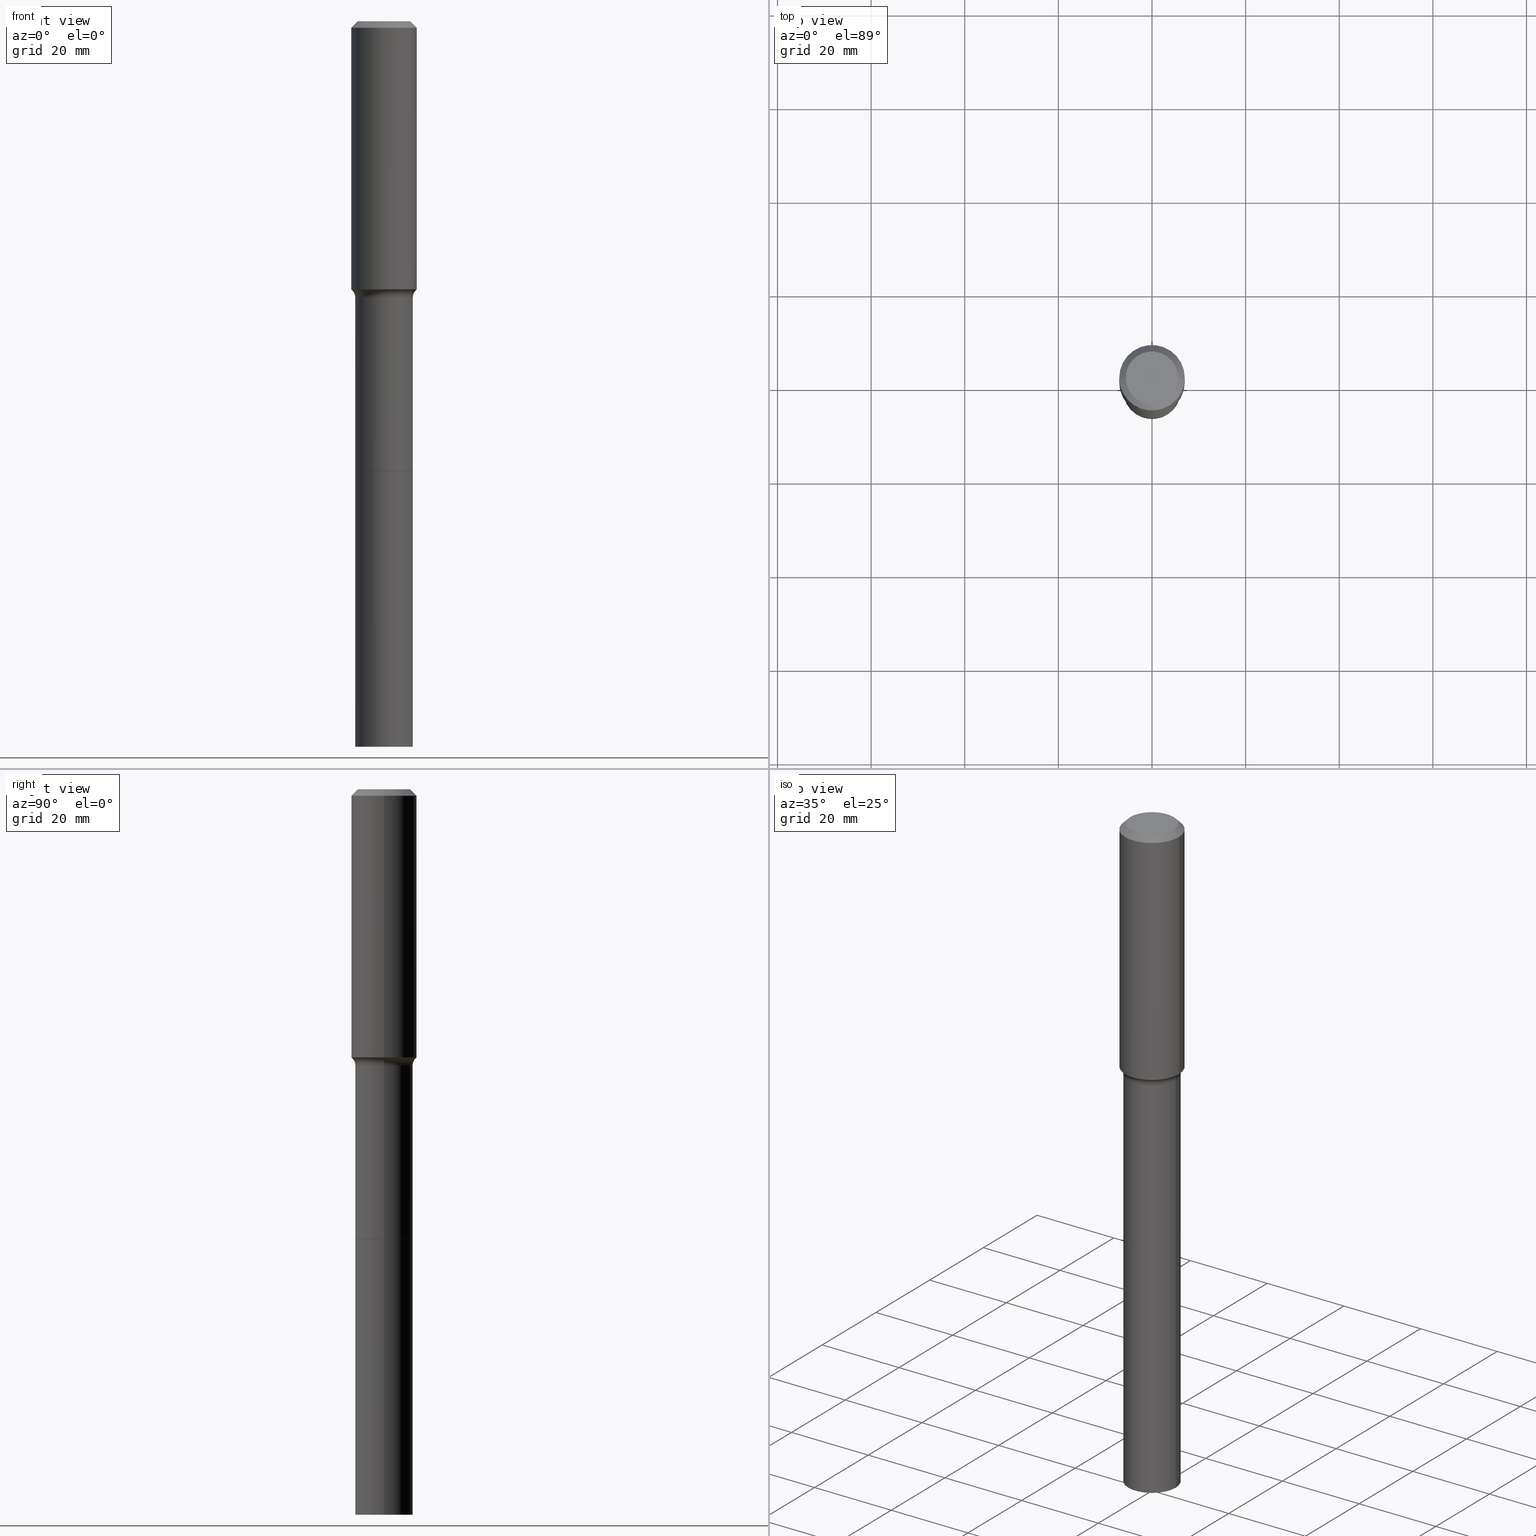
[diagram: canonical four-view strip — front | top / right | iso, engineering-drawing reading convention]
A machine part, canonical four-view strip (front | top / right | iso — engineering-drawing reading convention). The complete STEP part file that produces these views, byte-faithful:
ISO-10303-21;
HEADER;
FILE_DESCRIPTION (( 'STEP AP203' ),
    '1' );
FILE_NAME ('58910.STEP',
    '2025-04-01T15:26:49',
    ( '' ),
    ( '' ),
    'SwSTEP 2.0',
    'SolidWorks 2024',
    '' );
FILE_SCHEMA (( 'CONFIG_CONTROL_DESIGN' ));
ENDSEC;

DATA;
#1 = PERSON_AND_ORGANIZATION ( #31, #170 ) ;
#2 = PRODUCT_DEFINITION ( 'UNKNOWN', '', #135, #236 ) ;
#3 = CC_DESIGN_APPROVAL ( #81, ( #320 ) ) ;
#4 = AXIS2_PLACEMENT_3D ( 'NONE', #144, #382, #340 ) ;
#5 =( LENGTH_UNIT ( ) NAMED_UNIT ( * ) SI_UNIT ( $, .METRE. ) );
#6 = DIRECTION ( 'NONE',  ( 1.000000000000000000, 0.000000000000000000, 0.000000000000000000 ) ) ;
#7 = EDGE_CURVE ( 'NONE', #513, #426, #337, .T. ) ;
#8 = ORIENTED_EDGE ( 'NONE', *, *, #46, .T. ) ;
#9 = CLOSED_SHELL ( 'NONE', ( #311, #102, #222, #390 ) ) ;
#10 = CARTESIAN_POINT ( 'NONE',  ( -9.439721640706190018E-47, 1.347742071746724849E-32, 3.860086710912454339E-18 ) ) ;
#11 = CARTESIAN_POINT ( 'NONE',  ( -0.2756000000000000116, -2.074736939448809893E-15, -0.05512000000000037009 ) ) ;
#12 = DIRECTION ( 'NONE',  ( -0.6819983600624873743, 7.399397606724243978E-15, 0.7313537016191808959 ) ) ;
#13 = LOCAL_TIME ( 11, 26, 49.00000000000000000, #181 ) ;
#14 = FACE_OUTER_BOUND ( 'NONE', #47, .T. ) ;
#15 = CARTESIAN_POINT ( 'NONE',  ( 0.3221999999999999309, -1.035852683607983589E-14, -2.322400000000000464 ) ) ;
#16 = DIRECTION ( 'NONE',  ( -2.445468806185136877E-29, 3.491481338843145188E-15, 1.000000000000000000 ) ) ;
#17 = ORIENTED_EDGE ( 'NONE', *, *, #257, .T. ) ;
#18 = DIRECTION ( 'NONE',  ( -1.000000000000000000, 6.982962677686265922E-15, -4.876176775795935793E-29 ) ) ;
#19 = EDGE_LOOP ( 'NONE', ( #471, #187, #309, #392 ) ) ;
#20 = CARTESIAN_POINT ( 'NONE',  ( 0.2422000000000000264, -1.691273560535613991E-15, 1.181010015097775692E-29 ) ) ;
#21 = CIRCLE ( 'NONE', #394, 0.2422000000000000264 ) ;
#22 = DIRECTION ( 'NONE',  ( 1.000000000000000000, -6.982962677686267499E-15, 0.000000000000000000 ) ) ;
#23 = APPROVAL_DATE_TIME ( #505, #162 ) ;
#24 = EDGE_CURVE ( 'NONE', #208, #455, #175, .T. ) ;
#25 = CARTESIAN_POINT ( 'NONE',  ( -0.2756000000000000116, 1.732054062573299841E-15, -0.05512000000000037009 ) ) ;
#26 = DATE_TIME_ROLE ( 'classification_date' ) ;
#27 = FACE_OUTER_BOUND ( 'NONE', #317, .T. ) ;
#28 = CARTESIAN_POINT ( 'NONE',  ( -0.2756000000000001782, 1.958255779754837378E-15, -1.355658510874252848E-29 ) ) ;
#29 = DIRECTION ( 'NONE',  ( -2.445468806185136597E-29, 3.491481338843145583E-15, 1.000000000000000000 ) ) ;
#30 = LOCAL_TIME ( 11, 26, 49.00000000000000000, #276 ) ;
#31 = PERSON ( 'UNSPECIFIED', 'UNSPECIFIED', 'UNSPECIFIED', ('UNSPECIFIED'), ('UNSPECIFIED'), ('UNSPECIFIED') ) ;
#32 = AXIS2_PLACEMENT_3D ( 'NONE', #267, #58, #210 ) ;
#33 = ORIENTED_EDGE ( 'NONE', *, *, #373, .F. ) ;
#34 = APPROVAL_ROLE ( '' ) ;
#35 = CARTESIAN_POINT ( 'NONE',  ( 1.347942405969256414E-30, -1.924504513970354823E-16, -0.05512000000000037009 ) ) ;
#36 = ORIENTED_EDGE ( 'NONE', *, *, #468, .F. ) ;
#37 = ORIENTED_EDGE ( 'NONE', *, *, #480, .F. ) ;
#38 = DIRECTION ( 'NONE',  ( 0.6819983600624873743, -2.208861293262361418E-15, 0.7313537016191808959 ) ) ;
#39 = ORIENTED_EDGE ( 'NONE', *, *, #257, .F. ) ;
#40 = AXIS2_PLACEMENT_3D ( 'NONE', #378, #219, #176 ) ;
#41 = AXIS2_PLACEMENT_3D ( 'NONE', #100, #412, #22 ) ;
#42 = DATE_AND_TIME ( #306, #435 ) ;
#43 = DIRECTION ( 'NONE',  ( 1.000000000000000000, -6.982962677686265922E-15, 0.000000000000000000 ) ) ;
#44 = ADVANCED_FACE ( 'NONE', ( #356 ), #109, .T. ) ;
#45 = CIRCLE ( 'NONE', #376, 0.2417000000000000259 ) ;
#46 = EDGE_CURVE ( 'NONE', #133, #270, #506, .T. ) ;
#47 = EDGE_LOOP ( 'NONE', ( #164, #225, #36, #39 ) ) ;
#48 = ORIENTED_EDGE ( 'NONE', *, *, #353, .T. ) ;
#49 = DATE_AND_TIME ( #324, #13 ) ;
#50 = DIRECTION ( 'NONE',  ( -2.445468806185136597E-29, 3.491481338843145583E-15, 1.000000000000000000 ) ) ;
#51 = DIRECTION ( 'NONE',  ( -2.445468806185136597E-29, 3.491481338843145583E-15, 1.000000000000000000 ) ) ;
#52 = AXIS2_PLACEMENT_3D ( 'NONE', #247, #205, #357 ) ;
#53 = APPLICATION_PROTOCOL_DEFINITION ( 'international standard', 'config_control_design', 1994, #137 ) ;
#54 = DIRECTION ( 'NONE',  ( -2.445468806185136597E-29, 3.491481338843145583E-15, 1.000000000000000000 ) ) ;
#55 = ORIENTED_EDGE ( 'NONE', *, *, #89, .T. ) ;
#56 = CARTESIAN_POINT ( 'NONE',  ( 0.2422000000000000264, -1.488697813255939601E-14, -3.779399999999999427 ) ) ;
#57 = FACE_OUTER_BOUND ( 'NONE', #275, .T. ) ;
#58 = DIRECTION ( 'NONE',  ( -2.445468806185136597E-29, 3.491481338843145583E-15, 1.000000000000000000 ) ) ;
#59 = CARTESIAN_POINT ( 'NONE',  ( -0.2421999999999999154, -8.930353040330880505E-15, -2.322400000000000464 ) ) ;
#60 = EDGE_CURVE ( 'NONE', #513, #185, #214, .T. ) ;
#61 = AXIS2_PLACEMENT_3D ( 'NONE', #348, #463, #498 ) ;
#62 = CIRCLE ( 'NONE', #483, 0.2422000000000000264 ) ;
#63 = PERSON_AND_ORGANIZATION_ROLE ( 'design_supplier' ) ;
#64 = DIRECTION ( 'NONE',  ( -2.445468806185136597E-29, 3.491481338843145583E-15, 1.000000000000000000 ) ) ;
#65 = CARTESIAN_POINT ( 'NONE',  ( 1.492322884286417914E-28, -2.130641572215641241E-14, -6.102400000000000269 ) ) ;
#66 = DIRECTION ( 'NONE',  ( 1.000000000000000000, -6.982962677686265922E-15, 4.876176775795935793E-29 ) ) ;
#67 = APPLICATION_CONTEXT ( 'configuration controlled 3d designs of mechanical parts and assemblies' ) ;
#68 = ORIENTED_EDGE ( 'NONE', *, *, #315, .F. ) ;
#69 = CARTESIAN_POINT ( 'NONE',  ( 0.2422000000000000264, -2.299768928269202503E-14, -6.102400000000000269 ) ) ;
#70 = AXIS2_PLACEMENT_3D ( 'NONE', #195, #193, #6 ) ;
#71 = DIRECTION ( 'NONE',  ( -2.445468806185136597E-29, 3.491481338843145583E-15, 1.000000000000000000 ) ) ;
#72 = AXIS2_PLACEMENT_3D ( 'NONE', #212, #460, #114 ) ;
#73 = VERTEX_POINT ( 'NONE', #423 ) ;
#74 = CARTESIAN_POINT ( 'NONE',  ( 5.545932298252180810E-29, -7.918121497546934360E-15, -2.267840131195000275 ) ) ;
#75 = ORIENTED_EDGE ( 'NONE', *, *, #7, .T. ) ;
#76 = PRODUCT ( '58910', '58910', '', ( #396 ) ) ;
#77 = ORIENTED_EDGE ( 'NONE', *, *, #280, .F. ) ;
#78 = EDGE_CURVE ( 'NONE', #503, #399, #297, .T. ) ;
#79 = VERTEX_POINT ( 'NONE', #69 ) ;
#80 = VECTOR ( 'NONE', #12, 39.37007874015748143 ) ;
#81 = APPROVAL ( #419, 'UNSPECIFIED' ) ;
#82 =( CONVERSION_BASED_UNIT ( 'INCH', #232 ) LENGTH_UNIT ( ) NAMED_UNIT ( #454 ) );
#83 = DIRECTION ( 'NONE',  ( 1.000000000000000000, -6.982962677686265922E-15, 0.000000000000000000 ) ) ;
#84 = ADVANCED_FACE ( 'NONE', ( #253 ), #458, .T. ) ;
#85 =( NAMED_UNIT ( * ) PLANE_ANGLE_UNIT ( ) SI_UNIT ( $, .RADIAN. ) );
#86 = FACE_OUTER_BOUND ( 'NONE', #388, .T. ) ;
#87 = AXIS2_PLACEMENT_3D ( 'NONE', #105, #393, #66 ) ;
#88 = DIRECTION ( 'NONE',  ( 1.000000000000000000, -6.982962677686265922E-15, 0.000000000000000000 ) ) ;
#89 = EDGE_CURVE ( 'NONE', #270, #133, #482, .T. ) ;
#90 = DIRECTION ( 'NONE',  ( -2.438088387897960049E-29, 3.491481338843145188E-15, 1.000000000000000000 ) ) ;
#91 = DIRECTION ( 'NONE',  ( 1.000000000000000000, -6.982962677686266711E-15, 4.876176775795935232E-29 ) ) ;
#92 = EDGE_LOOP ( 'NONE', ( #206, #228, #249, #140 ) ) ;
#93 = CARTESIAN_POINT ( 'NONE',  ( -4.719860820353095009E-47, 6.738710358733624243E-33, 1.930043355456227170E-18 ) ) ;
#94 = DIRECTION ( 'NONE',  ( 1.000000000000000000, -6.982962677686275388E-15, 0.000000000000000000 ) ) ;
#95 = ADVANCED_FACE ( 'NONE', ( #112 ), #375, .T. ) ;
#96 = TOROIDAL_SURFACE ( 'NONE', #32, 0.3221999999999999309, 0.08000000000000007105 ) ;
#97 = ORIENTED_EDGE ( 'NONE', *, *, #151, .F. ) ;
#98 = CARTESIAN_POINT ( 'NONE',  ( 9.242404806096105288E-29, -1.319570457202378340E-14, -3.779399999999999427 ) ) ;
#99 = LINE ( 'NONE', #174, #220 ) ;
#100 = CARTESIAN_POINT ( 'NONE',  ( 9.242404806096105288E-29, -1.319570457202378340E-14, -3.779399999999999427 ) ) ;
#101 = EDGE_CURVE ( 'NONE', #344, #360, #301, .T. ) ;
#102 = ADVANCED_FACE ( 'NONE', ( #262 ), #420, .T. ) ;
#103 = DIRECTION ( 'NONE',  ( 2.445468806185136597E-29, -3.491481338843145583E-15, -1.000000000000000000 ) ) ;
#104 = DIRECTION ( 'NONE',  ( -2.445468806185136597E-29, 3.491481338843145583E-15, 1.000000000000000000 ) ) ;
#105 = CARTESIAN_POINT ( 'NONE',  ( 0.000000000000000000, 0.000000000000000000, 0.000000000000000000 ) ) ;
#106 = AXIS2_PLACEMENT_3D ( 'NONE', #438, #51, #43 ) ;
#107 = CARTESIAN_POINT ( 'NONE',  ( -0.2204800000000000093, 1.635828836874783961E-15, 3.860086710901350968E-18 ) ) ;
#108 = DIRECTION ( 'NONE',  ( -2.445468806185136597E-29, 3.491481338843145583E-15, 1.000000000000000000 ) ) ;
#109 = CONICAL_SURFACE ( 'NONE', #191, 0.2756000000000000116, 0.7853981633974449483 ) ;
#110 = EDGE_LOOP ( 'NONE', ( #166, #217 ) ) ;
#111 = PERSON_AND_ORGANIZATION ( #31, #170 ) ;
#112 = FACE_OUTER_BOUND ( 'NONE', #369, .T. ) ;
#113 = VERTEX_POINT ( 'NONE', #383 ) ;
#114 = DIRECTION ( 'NONE',  ( 1.000000000000000000, -6.982962677686267499E-15, 0.000000000000000000 ) ) ;
#115 = CIRCLE ( 'NONE', #202, 0.2756000000000000116 ) ;
#116 = ORIENTED_EDGE ( 'NONE', *, *, #444, .F. ) ;
#117 = CARTESIAN_POINT ( 'NONE',  ( 0.000000000000000000, 0.000000000000000000, 0.000000000000000000 ) ) ;
#118 = ORIENTED_EDGE ( 'NONE', *, *, #280, .T. ) ;
#119 = EDGE_CURVE ( 'NONE', #421, #431, #115, .T. ) ;
#120 = CARTESIAN_POINT ( 'NONE',  ( 9.242404806096105288E-29, -1.319570457202378340E-14, -3.779399999999999427 ) ) ;
#121 = CARTESIAN_POINT ( 'NONE',  ( 9.242404806096105288E-29, -1.319570457202378340E-14, -3.779399999999999427 ) ) ;
#122 = AXIS2_PLACEMENT_3D ( 'NONE', #445, #241, #475 ) ;
#123 = EDGE_LOOP ( 'NONE', ( #33, #295, #330, #288 ) ) ;
#124 = PERSON_AND_ORGANIZATION ( #31, #170 ) ;
#125 = TOROIDAL_SURFACE ( 'NONE', #386, 0.3221999999999999309, 0.08000000000000007105 ) ;
#126 = VECTOR ( 'NONE', #207, 39.37007874015748143 ) ;
#127 = CIRCLE ( 'NONE', #61, 0.2636917038704668093 ) ;
#128 = CYLINDRICAL_SURFACE ( 'NONE', #398, 0.2422000000000000264 ) ;
#129 = CIRCLE ( 'NONE', #200, 0.2422000000000000264 ) ;
#130 = DIRECTION ( 'NONE',  ( 1.000000000000000000, -6.982962677686266711E-15, 4.876132675269083677E-29 ) ) ;
#131 = DIRECTION ( 'NONE',  ( 2.438088387897960049E-29, -3.491481338843145188E-15, -1.000000000000000000 ) ) ;
#132 = DIRECTION ( 'NONE',  ( -2.445468806185136597E-29, 3.491481338843145583E-15, 1.000000000000000000 ) ) ;
#133 = VERTEX_POINT ( 'NONE', #178 ) ;
#134 = FACE_OUTER_BOUND ( 'NONE', #204, .T. ) ;
#135 = PRODUCT_DEFINITION_FORMATION_WITH_SPECIFIED_SOURCE ( 'ANY', '', #76, .NOT_KNOWN. ) ;
#136 = ADVANCED_FACE ( 'NONE', ( #342 ), #96, .F. ) ;
#137 = APPLICATION_CONTEXT ( 'configuration controlled 3d designs of mechanical parts and assemblies' ) ;
#138 = CARTESIAN_POINT ( 'NONE',  ( 1.347942405969256414E-30, -1.924504513970354823E-16, -0.05512000000000037009 ) ) ;
#139 = CARTESIAN_POINT ( 'NONE',  ( 5.679356755484362262E-29, -8.108616261329323209E-15, -2.322400000000000464 ) ) ;
#140 = ORIENTED_EDGE ( 'NONE', *, *, #372, .T. ) ;
#141 = DIRECTION ( 'NONE',  ( -2.445468806185136877E-29, 3.491481338843145188E-15, 1.000000000000000000 ) ) ;
#142 = PERSON_AND_ORGANIZATION_ROLE ( 'creator' ) ;
#143 = AXIS2_PLACEMENT_3D ( 'NONE', #74, #304, #223 ) ;
#144 = CARTESIAN_POINT ( 'NONE',  ( 5.679356755484362262E-29, -8.108616261329323209E-15, -2.322400000000000464 ) ) ;
#145 = PERSON_AND_ORGANIZATION ( #31, #170 ) ;
#146 = ORIENTED_EDGE ( 'NONE', *, *, #493, .F. ) ;
#147 = DIRECTION ( 'NONE',  ( 1.000000000000000000, -6.982962677686266711E-15, 4.876176775795935232E-29 ) ) ;
#148 = ORIENTED_EDGE ( 'NONE', *, *, #154, .F. ) ;
#149 = CIRCLE ( 'NONE', #192, 0.2421999999999999154 ) ;
#150 = FACE_OUTER_BOUND ( 'NONE', #464, .T. ) ;
#151 = EDGE_CURVE ( 'NONE', #185, #360, #465, .T. ) ;
#152 = AXIS2_PLACEMENT_3D ( 'NONE', #15, #327, #94 ) ;
#153 = ORIENTED_EDGE ( 'NONE', *, *, #60, .F. ) ;
#154 = EDGE_CURVE ( 'NONE', #113, #503, #45, .T. ) ;
#155 = EDGE_LOOP ( 'NONE', ( #55, #8 ) ) ;
#156 = AXIS2_PLACEMENT_3D ( 'NONE', #417, #108, #147 ) ;
#157 = DIRECTION ( 'NONE',  ( -2.445468806185136597E-29, 3.491481338843145583E-15, 1.000000000000000000 ) ) ;
#158 = CARTESIAN_POINT ( 'NONE',  ( 0.2417000000000000259, -1.488348665122055458E-14, -3.779399999999999427 ) ) ;
#159 = ORIENTED_EDGE ( 'NONE', *, *, #186, .T. ) ;
#160 = DIRECTION ( 'NONE',  ( -2.445468806185136597E-29, 3.491481338843145583E-15, 1.000000000000000000 ) ) ;
#161 = VECTOR ( 'NONE', #316, 39.37007874015748143 ) ;
#162 = APPROVAL ( #183, 'UNSPECIFIED' ) ;
#163 = CARTESIAN_POINT ( 'NONE',  ( 9.241182071693010244E-29, -1.319395883135436111E-14, -3.778899999999999260 ) ) ;
#164 = ORIENTED_EDGE ( 'NONE', *, *, #154, .T. ) ;
#165 = CARTESIAN_POINT ( 'NONE',  ( -0.2417000000000000259, -1.147567355251750908E-14, -3.779399999999999427 ) ) ;
#166 = ORIENTED_EDGE ( 'NONE', *, *, #466, .F. ) ;
#167 = LINE ( 'NONE', #158, #161 ) ;
#168 = EDGE_CURVE ( 'NONE', #73, #79, #21, .T. ) ;
#169 = DIRECTION ( 'NONE',  ( -1.000000000000000000, 6.982962677686265922E-15, -4.876176775795935793E-29 ) ) ;
#170 = ORGANIZATION ( 'UNSPECIFIED', 'UNSPECIFIED', '' ) ;
#171 = VECTOR ( 'NONE', #489, 39.37007874015748143 ) ;
#172 = DIRECTION ( 'NONE',  ( -2.445468806185136597E-29, 3.491481338843145583E-15, 1.000000000000000000 ) ) ;
#173 = CC_DESIGN_PERSON_AND_ORGANIZATION_ASSIGNMENT ( #345, #142, ( #135 ) ) ;
#174 = CARTESIAN_POINT ( 'NONE',  ( 0.2756000000000001782, -1.924504513970336137E-15, 1.343874319409360828E-29 ) ) ;
#175 = CIRCLE ( 'NONE', #472, 0.2422000000000000264 ) ;
#176 = DIRECTION ( 'NONE',  ( 1.000000000000000000, -6.982962677686270655E-15, 0.000000000000000000 ) ) ;
#177 = LINE ( 'NONE', #28, #474 ) ;
#178 = CARTESIAN_POINT ( 'NONE',  ( 0.2204800000000000093, -1.797903149065768707E-15, 3.860086710924123164E-18 ) ) ;
#179 = CIRCLE ( 'NONE', #278, 0.2756000000000002892 ) ;
#180 = ORIENTED_EDGE ( 'NONE', *, *, #433, .F. ) ;
#181 = COORDINATED_UNIVERSAL_TIME_OFFSET ( 5, 0, .BEHIND. ) ;
#182 = DIRECTION ( 'NONE',  ( 1.000000000000000000, -6.982962677686267499E-15, 0.000000000000000000 ) ) ;
#183 = APPROVAL_STATUS ( 'not_yet_approved' ) ;
#184 = FACE_OUTER_BOUND ( 'NONE', #349, .T. ) ;
#185 = VERTEX_POINT ( 'NONE', #282 ) ;
#186 = EDGE_CURVE ( 'NONE', #360, #344, #179, .T. ) ;
#187 = ORIENTED_EDGE ( 'NONE', *, *, #168, .T. ) ;
#188 = AXIS2_PLACEMENT_3D ( 'NONE', #380, #411, #302 ) ;
#189 = VECTOR ( 'NONE', #406, 39.37007874015748143 ) ;
#190 = ORIENTED_EDGE ( 'NONE', *, *, #60, .T. ) ;
#191 = AXIS2_PLACEMENT_3D ( 'NONE', #518, #476, #511 ) ;
#192 = AXIS2_PLACEMENT_3D ( 'NONE', #495, #64, #371 ) ;
#193 = DIRECTION ( 'NONE',  ( 0.000000000000000000, 0.000000000000000000, 1.000000000000000000 ) ) ;
#194 = EDGE_LOOP ( 'NONE', ( #507, #478, #118, #338 ) ) ;
#195 = CARTESIAN_POINT ( 'NONE',  ( 0.000000000000000000, 0.000000000000000000, 0.000000000000000000 ) ) ;
#196 = ADVANCED_FACE ( 'NONE', ( #318 ), #128, .T. ) ;
#197 = ORIENTED_EDGE ( 'NONE', *, *, #298, .T. ) ;
#198 = EDGE_CURVE ( 'NONE', #513, #344, #364, .T. ) ;
#199 = ORIENTED_EDGE ( 'NONE', *, *, #78, .F. ) ;
#200 = AXIS2_PLACEMENT_3D ( 'NONE', #370, #172, #407 ) ;
#201 = CARTESIAN_POINT ( 'NONE',  ( 0.2756000000000000116, -2.116954965367371053E-15, -0.05512000000000037009 ) ) ;
#202 = AXIS2_PLACEMENT_3D ( 'NONE', #35, #29, #182 ) ;
#203 = LINE ( 'NONE', #366, #285 ) ;
#204 = EDGE_LOOP ( 'NONE', ( #305, #442 ) ) ;
#205 = DIRECTION ( 'NONE',  ( -2.445468806185136597E-29, 3.491481338843145583E-15, 1.000000000000000000 ) ) ;
#206 = ORIENTED_EDGE ( 'NONE', *, *, #7, .F. ) ;
#207 = DIRECTION ( 'NONE',  ( -2.445468806185136877E-29, 3.491481338843145188E-15, 1.000000000000000000 ) ) ;
#208 = VERTEX_POINT ( 'NONE', #397 ) ;
#209 = CARTESIAN_POINT ( 'NONE',  ( -0.2756000000000002892, -5.915279207255420671E-15, -2.255070047035979908 ) ) ;
#210 = DIRECTION ( 'NONE',  ( 1.000000000000000000, -6.982962677686265922E-15, 4.883557194083112340E-29 ) ) ;
#211 = PLANE ( 'NONE',  #491 ) ;
#212 = CARTESIAN_POINT ( 'NONE',  ( 9.242404806096105288E-29, -1.319570457202378340E-14, -3.779399999999999427 ) ) ;
#213 = SECURITY_CLASSIFICATION_LEVEL ( 'unclassified' ) ;
#214 = CIRCLE ( 'NONE', #381, 0.2636917038704668093 ) ;
#215 = DIRECTION ( 'NONE',  ( 2.438088387897960049E-29, -3.491481338843145188E-15, -1.000000000000000000 ) ) ;
#216 = DIRECTION ( 'NONE',  ( -2.445468806185136597E-29, 3.491481338843145583E-15, 1.000000000000000000 ) ) ;
#217 = ORIENTED_EDGE ( 'NONE', *, *, #168, .F. ) ;
#218 = CALENDAR_DATE ( 2025, 1, 4 ) ;
#219 = DIRECTION ( 'NONE',  ( -2.445468806185136597E-29, 3.491481338843145583E-15, 1.000000000000000000 ) ) ;
#220 = VECTOR ( 'NONE', #141, 39.37007874015748143 ) ;
#221 = ORIENTED_EDGE ( 'NONE', *, *, #373, .T. ) ;
#222 = ADVANCED_FACE ( 'NONE', ( #403 ), #286, .T. ) ;
#223 = DIRECTION ( 'NONE',  ( 1.000000000000000000, -6.982962677686267499E-15, 0.000000000000000000 ) ) ;
#224 = EDGE_LOOP ( 'NONE', ( #148, #37 ) ) ;
#225 = ORIENTED_EDGE ( 'NONE', *, *, #78, .T. ) ;
#226 = CC_DESIGN_PERSON_AND_ORGANIZATION_ASSIGNMENT ( #362, #325, ( #76 ) ) ;
#227 = CONICAL_SURFACE ( 'NONE', #143, 0.2636917038704668093, 0.7504915783575464294 ) ;
#228 = ORIENTED_EDGE ( 'NONE', *, *, #298, .F. ) ;
#229 = DIRECTION ( 'NONE',  ( 1.000000000000000000, -6.982962677686267499E-15, 0.000000000000000000 ) ) ;
#230 = COORDINATED_UNIVERSAL_TIME_OFFSET ( 5, 0, .BEHIND. ) ;
#231 = ADVANCED_BREP_SHAPE_REPRESENTATION ( '58910', ( #430, #243, #70 ), #292 ) ;
#232 = LENGTH_MEASURE_WITH_UNIT ( LENGTH_MEASURE( 0.02539999999999999897 ), #5 );
#233 = DIRECTION ( 'NONE',  ( 1.000000000000000000, -6.982962677686270655E-15, 0.000000000000000000 ) ) ;
#234 = APPROVAL_STATUS ( 'not_yet_approved' ) ;
#235 = CIRCLE ( 'NONE', #284, 0.2422000000000000819 ) ;
#236 = DESIGN_CONTEXT ( 'detailed design', #137, 'design' ) ;
#237 = DIRECTION ( 'NONE',  ( -2.445468806185136597E-29, 3.491481338843145583E-15, 1.000000000000000000 ) ) ;
#238 =( NAMED_UNIT ( * ) SI_UNIT ( $, .STERADIAN. ) SOLID_ANGLE_UNIT ( ) );
#239 = EDGE_CURVE ( 'NONE', #185, #334, #314, .T. ) ;
#240 = DIRECTION ( 'NONE',  ( -2.445468806185136597E-29, 3.491481338843145583E-15, 1.000000000000000000 ) ) ;
#241 = DIRECTION ( 'NONE',  ( 7.105427357601001859E-15, 1.000000000000000000, -3.491481338843145583E-15 ) ) ;
#242 = FACE_OUTER_BOUND ( 'NONE', #434, .T. ) ;
#243 = MANIFOLD_SOLID_BREP ( 'Body-Move/Copy2[2]', #432 ) ;
#244 = LOCAL_TIME ( 11, 26, 49.00000000000000000, #422 ) ;
#245 = CARTESIAN_POINT ( 'NONE',  ( 9.242404806096105288E-29, -1.319570457202378340E-14, -3.779399999999999427 ) ) ;
#246 = CONICAL_SURFACE ( 'NONE', #350, 0.2636917038704668093, 0.7504915783575464294 ) ;
#247 = CARTESIAN_POINT ( 'NONE',  ( 1.347942405969256414E-30, -1.924504513970354823E-16, -0.05512000000000037009 ) ) ;
#248 = PERSON_AND_ORGANIZATION ( #31, #170 ) ;
#249 = ORIENTED_EDGE ( 'NONE', *, *, #239, .T. ) ;
#250 = PLANE ( 'NONE',  #469 ) ;
#251 = EDGE_CURVE ( 'NONE', #431, #421, #256, .T. ) ;
#252 = DIRECTION ( 'NONE',  ( 1.000000000000000000, -6.982962677686267499E-15, 0.000000000000000000 ) ) ;
#253 = FACE_OUTER_BOUND ( 'NONE', #310, .T. ) ;
#254 = CARTESIAN_POINT ( 'NONE',  ( -0.2422000000000000819, -8.930353040330880505E-15, -3.778899999999999260 ) ) ;
#255 = CC_DESIGN_SECURITY_CLASSIFICATION ( #320, ( #135 ) ) ;
#256 = CIRCLE ( 'NONE', #52, 0.2756000000000000116 ) ;
#257 = EDGE_CURVE ( 'NONE', #113, #352, #167, .T. ) ;
#258 = CIRCLE ( 'NONE', #441, 0.2417000000000000259 ) ;
#259 = ORIENTED_EDGE ( 'NONE', *, *, #24, .F. ) ;
#260 = CC_DESIGN_DATE_AND_TIME_ASSIGNMENT ( #395, #354, ( #2 ) ) ;
#261 = PERSON_AND_ORGANIZATION ( #31, #170 ) ;
#262 = FACE_OUTER_BOUND ( 'NONE', #110, .T. ) ;
#263 = ORIENTED_EDGE ( 'NONE', *, *, #46, .F. ) ;
#264 = DIRECTION ( 'NONE',  ( 1.000000000000000000, -6.982962677686267499E-15, 0.000000000000000000 ) ) ;
#265 = ADVANCED_FACE ( 'NONE', ( #86 ), #496, .T. ) ;
#266 = ORIENTED_EDGE ( 'NONE', *, *, #372, .F. ) ;
#267 = CARTESIAN_POINT ( 'NONE',  ( 5.679356755484362262E-29, -8.108616261329323209E-15, -2.322400000000000464 ) ) ;
#268 = VECTOR ( 'NONE', #343, 39.37007874015748143 ) ;
#269 = CARTESIAN_POINT ( 'NONE',  ( 5.545932298252180810E-29, -7.918121497546934360E-15, -2.267840131195000275 ) ) ;
#270 = VERTEX_POINT ( 'NONE', #107 ) ;
#271 = ADVANCED_FACE ( 'NONE', ( #27 ), #246, .T. ) ;
#272 = ORIENTED_EDGE ( 'NONE', *, *, #186, .F. ) ;
#273 = APPROVAL_ROLE ( '' ) ;
#274 = PRODUCT_DEFINITION_SHAPE ( 'NONE', 'NONE',  #2 ) ;
#275 = EDGE_LOOP ( 'NONE', ( #153, #75, #48, #389 ) ) ;
#276 = COORDINATED_UNIVERSAL_TIME_OFFSET ( 5, 0, .BEHIND. ) ;
#277 = APPROVAL_PERSON_ORGANIZATION ( #261, #81, #34 ) ;
#278 = AXIS2_PLACEMENT_3D ( 'NONE', #291, #237, #233 ) ;
#279 = AXIS2_PLACEMENT_3D ( 'NONE', #10, #319, #130 ) ;
#280 = EDGE_CURVE ( 'NONE', #270, #421, #427, .T. ) ;
#281 = ADVANCED_FACE ( 'NONE', ( #184 ), #227, .T. ) ;
#282 = CARTESIAN_POINT ( 'NONE',  ( 0.2636917038704666427, -9.759470824089901283E-15, -2.267840131195000275 ) ) ;
#283 = ORIENTED_EDGE ( 'NONE', *, *, #466, .T. ) ;
#284 = AXIS2_PLACEMENT_3D ( 'NONE', #492, #54, #456 ) ;
#285 = VECTOR ( 'NONE', #16, 39.37007874015748143 ) ;
#286 = CYLINDRICAL_SURFACE ( 'NONE', #106, 0.2422000000000000264 ) ;
#287 = CARTESIAN_POINT ( 'NONE',  ( 5.545932298252180810E-29, -7.918121497546934360E-15, -2.267840131195000275 ) ) ;
#288 = ORIENTED_EDGE ( 'NONE', *, *, #119, .F. ) ;
#289 = PLANE ( 'NONE',  #294 ) ;
#290 = DIRECTION ( 'NONE',  ( -2.445468806185136877E-29, 3.491481338843145188E-15, 1.000000000000000000 ) ) ;
#291 = CARTESIAN_POINT ( 'NONE',  ( 5.514703455788938284E-29, -7.873534987010259627E-15, -2.255070047035979908 ) ) ;
#292 =( GEOMETRIC_REPRESENTATION_CONTEXT ( 3 ) GLOBAL_UNCERTAINTY_ASSIGNED_CONTEXT ( ( #457 ) ) GLOBAL_UNIT_ASSIGNED_CONTEXT ( ( #82, #85, #238 ) ) REPRESENTATION_CONTEXT ( 'NONE', 'WORKASPACE' ) );
#293 = LINE ( 'NONE', #487, #189 ) ;
#294 = AXIS2_PLACEMENT_3D ( 'NONE', #245, #449, #18 ) ;
#295 = ORIENTED_EDGE ( 'NONE', *, *, #101, .T. ) ;
#296 = DIRECTION ( 'NONE',  ( 1.000000000000000000, -6.982962677686265922E-15, 4.876176775795935793E-29 ) ) ;
#297 = LINE ( 'NONE', #461, #462 ) ;
#298 = EDGE_CURVE ( 'NONE', #185, #513, #127, .T. ) ;
#299 = ADVANCED_FACE ( 'NONE', ( #512 ), #425, .T. ) ;
#300 = LINE ( 'NONE', #20, #502 ) ;
#301 = CIRCLE ( 'NONE', #40, 0.2756000000000002892 ) ;
#302 = DIRECTION ( 'NONE',  ( 1.000000000000000000, -6.982962677686266711E-15, 4.876132675269083677E-29 ) ) ;
#303 = PERSON_AND_ORGANIZATION_ROLE ( 'classification_officer' ) ;
#304 = DIRECTION ( 'NONE',  ( -2.445468806185136597E-29, 3.491481338843145583E-15, 1.000000000000000000 ) ) ;
#305 = ORIENTED_EDGE ( 'NONE', *, *, #24, .T. ) ;
#306 = CALENDAR_DATE ( 2025, 1, 4 ) ;
#307 = ORIENTED_EDGE ( 'NONE', *, *, #151, .T. ) ;
#308 = CARTESIAN_POINT ( 'NONE',  ( 9.242404806096105288E-29, -1.319570457202378340E-14, -3.779399999999999427 ) ) ;
#309 = ORIENTED_EDGE ( 'NONE', *, *, #433, .T. ) ;
#310 = EDGE_LOOP ( 'NONE', ( #146, #517, #470, #358 ) ) ;
#311 = ADVANCED_FACE ( 'NONE', ( #150 ), #509, .T. ) ;
#312 = DIRECTION ( 'NONE',  ( -2.445468806185136597E-29, 3.491481338843145583E-15, 1.000000000000000000 ) ) ;
#313 = PERSON_AND_ORGANIZATION_ROLE ( 'creator' ) ;
#314 = CIRCLE ( 'NONE', #152, 0.08000000000000009881 ) ;
#315 = EDGE_CURVE ( 'NONE', #360, #431, #99, .T. ) ;
#316 = DIRECTION ( 'NONE',  ( 0.7071067811864750752, -2.468850131081498176E-15, 0.7071067811866199593 ) ) ;
#317 = EDGE_LOOP ( 'NONE', ( #467, #190, #307, #339 ) ) ;
#318 = FACE_OUTER_BOUND ( 'NONE', #385, .T. ) ;
#319 = DIRECTION ( 'NONE',  ( -2.445468806185136597E-29, 3.491481338843145583E-15, 1.000000000000000000 ) ) ;
#320 = SECURITY_CLASSIFICATION ( '', '', #213 ) ;
#321 = ORIENTED_EDGE ( 'NONE', *, *, #493, .T. ) ;
#322 = VECTOR ( 'NONE', #38, 39.37007874015748143 ) ;
#323 = CARTESIAN_POINT ( 'NONE',  ( -0.2422000000000000264, -1.553012564107913704E-14, -3.779399999999999427 ) ) ;
#324 = CALENDAR_DATE ( 2025, 1, 4 ) ;
#325 = PERSON_AND_ORGANIZATION_ROLE ( 'design_owner' ) ;
#326 = DIRECTION ( 'NONE',  ( 1.000000000000000000, -6.982962677686264344E-15, 0.000000000000000000 ) ) ;
#327 = DIRECTION ( 'NONE',  ( -6.982962677686266711E-15, -1.000000000000000000, 3.491481338843145583E-15 ) ) ;
#328 = LINE ( 'NONE', #335, #126 ) ;
#329 = CC_DESIGN_PERSON_AND_ORGANIZATION_ASSIGNMENT ( #124, #313, ( #2 ) ) ;
#330 = ORIENTED_EDGE ( 'NONE', *, *, #315, .T. ) ;
#331 = LINE ( 'NONE', #56, #171 ) ;
#332 = CONICAL_SURFACE ( 'NONE', #514, 0.2756000000000000116, 0.7853981633974449483 ) ;
#333 = CARTESIAN_POINT ( 'NONE',  ( 0.2636917038704668093, -9.759470824089902860E-15, -2.267840131195000275 ) ) ;
#334 = VERTEX_POINT ( 'NONE', #408 ) ;
#335 = CARTESIAN_POINT ( 'NONE',  ( -0.2422000000000000264, -1.147477006601282096E-14, -3.779399999999999427 ) ) ;
#336 = ADVANCED_FACE ( 'NONE', ( #57 ), #125, .F. ) ;
#337 = CIRCLE ( 'NONE', #122, 0.08000000000000009881 ) ;
#338 = ORIENTED_EDGE ( 'NONE', *, *, #119, .T. ) ;
#339 = ORIENTED_EDGE ( 'NONE', *, *, #101, .F. ) ;
#340 = DIRECTION ( 'NONE',  ( 1.000000000000000000, -6.982962677686265133E-15, 0.000000000000000000 ) ) ;
#341 = CALENDAR_DATE ( 2025, 1, 4 ) ;
#342 = FACE_OUTER_BOUND ( 'NONE', #92, .T. ) ;
#343 = DIRECTION ( 'NONE',  ( -0.7071067811865451302, 2.468850131082231817E-15, -0.7071067811865499042 ) ) ;
#344 = VERTEX_POINT ( 'NONE', #209 ) ;
#345 = PERSON_AND_ORGANIZATION ( #31, #170 ) ;
#346 = DIRECTION ( 'NONE',  ( 1.000000000000000000, -6.982962677686265922E-15, 4.876176775795935793E-29 ) ) ;
#347 = ORIENTED_EDGE ( 'NONE', *, *, #468, .T. ) ;
#348 = CARTESIAN_POINT ( 'NONE',  ( 5.545932298252180810E-29, -7.918121497546934360E-15, -2.267840131195000275 ) ) ;
#349 = EDGE_LOOP ( 'NONE', ( #197, #367, #272, #97 ) ) ;
#350 = AXIS2_PLACEMENT_3D ( 'NONE', #269, #216, #384 ) ;
#351 = AXIS2_PLACEMENT_3D ( 'NONE', #163, #160, #326 ) ;
#352 = VERTEX_POINT ( 'NONE', #418 ) ;
#353 = EDGE_CURVE ( 'NONE', #426, #334, #149, .T. ) ;
#354 = DATE_TIME_ROLE ( 'creation_date' ) ;
#355 = EDGE_CURVE ( 'NONE', #352, #334, #300, .T. ) ;
#356 = FACE_OUTER_BOUND ( 'NONE', #194, .T. ) ;
#357 = DIRECTION ( 'NONE',  ( 1.000000000000000000, -6.982962677686267499E-15, 0.000000000000000000 ) ) ;
#358 = ORIENTED_EDGE ( 'NONE', *, *, #353, .F. ) ;
#359 = APPROVAL ( #234, 'UNSPECIFIED' ) ;
#360 = VERTEX_POINT ( 'NONE', #504 ) ;
#361 = DIRECTION ( 'NONE',  ( 1.000000000000000000, -6.982962677686265922E-15, 0.000000000000000000 ) ) ;
#362 = PERSON_AND_ORGANIZATION ( #31, #170 ) ;
#363 = DIRECTION ( 'NONE',  ( 1.000000000000000000, -6.982962677686265922E-15, 0.000000000000000000 ) ) ;
#364 = LINE ( 'NONE', #450, #80 ) ;
#365 = ORIENTED_EDGE ( 'NONE', *, *, #355, .F. ) ;
#366 = CARTESIAN_POINT ( 'NONE',  ( -0.2422000000000000264, 1.720934506010962838E-15, -1.191366078859738205E-29 ) ) ;
#367 = ORIENTED_EDGE ( 'NONE', *, *, #198, .T. ) ;
#368 = APPROVAL_DATE_TIME ( #49, #81 ) ;
#369 = EDGE_LOOP ( 'NONE', ( #199, #510, #17, #116 ) ) ;
#370 = CARTESIAN_POINT ( 'NONE',  ( 9.242404806096105288E-29, -1.319570457202378340E-14, -3.779399999999999427 ) ) ;
#371 = DIRECTION ( 'NONE',  ( 1.000000000000000000, -6.982962677686265133E-15, 0.000000000000000000 ) ) ;
#372 = EDGE_CURVE ( 'NONE', #334, #426, #440, .T. ) ;
#373 = EDGE_CURVE ( 'NONE', #344, #421, #177, .T. ) ;
#374 = CARTESIAN_POINT ( 'NONE',  ( 9.242404806096105288E-29, -1.319570457202378340E-14, -3.779399999999999427 ) ) ;
#375 = CONICAL_SURFACE ( 'NONE', #72, 0.2417000000000000259, 0.7853981633973459164 ) ;
#376 = AXIS2_PLACEMENT_3D ( 'NONE', #120, #312, #229 ) ;
#377 = APPROVAL_ROLE ( '' ) ;
#378 = CARTESIAN_POINT ( 'NONE',  ( 5.514703455788938284E-29, -7.873534987010259627E-15, -2.255070047035979908 ) ) ;
#379 = DATE_AND_TIME ( #218, #244 ) ;
#380 = CARTESIAN_POINT ( 'NONE',  ( -9.439721640706190018E-47, 1.347742071746724849E-32, 3.860086710912454339E-18 ) ) ;
#381 = AXIS2_PLACEMENT_3D ( 'NONE', #287, #240, #264 ) ;
#382 = DIRECTION ( 'NONE',  ( -2.445468806185136597E-29, 3.491481338843145583E-15, 1.000000000000000000 ) ) ;
#383 = CARTESIAN_POINT ( 'NONE',  ( 0.2417000000000000259, -1.488348665122055458E-14, -3.779399999999999427 ) ) ;
#384 = DIRECTION ( 'NONE',  ( 1.000000000000000000, -6.982962677686267499E-15, 0.000000000000000000 ) ) ;
#385 = EDGE_LOOP ( 'NONE', ( #347, #321, #266, #365 ) ) ;
#386 = AXIS2_PLACEMENT_3D ( 'NONE', #139, #104, #410 ) ;
#387 = DIRECTION ( 'NONE',  ( -1.000000000000000000, 6.982962677686265922E-15, -4.876176775795935793E-29 ) ) ;
#388 = EDGE_LOOP ( 'NONE', ( #159, #221, #500, #68 ) ) ;
#389 = ORIENTED_EDGE ( 'NONE', *, *, #239, .F. ) ;
#390 = ADVANCED_FACE ( 'NONE', ( #134 ), #289, .F. ) ;
#391 = ADVANCED_FACE ( 'NONE', ( #242 ), #332, .T. ) ;
#392 = ORIENTED_EDGE ( 'NONE', *, *, #499, .F. ) ;
#393 = DIRECTION ( 'NONE',  ( -2.445468806185136597E-29, 3.491481338843145583E-15, 1.000000000000000000 ) ) ;
#394 = AXIS2_PLACEMENT_3D ( 'NONE', #477, #132, #361 ) ;
#395 = DATE_AND_TIME ( #437, #30 ) ;
#396 = MECHANICAL_CONTEXT ( 'NONE', #67, 'mechanical' ) ;
#397 = CARTESIAN_POINT ( 'NONE',  ( 0.2422000000000000264, -1.488697813255939601E-14, -3.779399999999999427 ) ) ;
#398 = AXIS2_PLACEMENT_3D ( 'NONE', #485, #448, #91 ) ;
#399 = VERTEX_POINT ( 'NONE', #254 ) ;
#400 = CC_DESIGN_DATE_AND_TIME_ASSIGNMENT ( #379, #26, ( #320 ) ) ;
#401 = APPLICATION_PROTOCOL_DEFINITION ( 'international standard', 'config_control_design', 1994, #67 ) ;
#402 = FACE_OUTER_BOUND ( 'NONE', #224, .T. ) ;
#403 = FACE_OUTER_BOUND ( 'NONE', #19, .T. ) ;
#404 = CC_DESIGN_APPROVAL ( #359, ( #2 ) ) ;
#405 = AXIS2_PLACEMENT_3D ( 'NONE', #117, #71, #346 ) ;
#406 = DIRECTION ( 'NONE',  ( 0.7071067811865451302, -7.319954787623248157E-15, -0.7071067811865499042 ) ) ;
#407 = DIRECTION ( 'NONE',  ( 1.000000000000000000, -6.982962677686265922E-15, 0.000000000000000000 ) ) ;
#408 = CARTESIAN_POINT ( 'NONE',  ( 0.2421999999999999154, -9.799889821864935820E-15, -2.322400000000000464 ) ) ;
#409 = DIRECTION ( 'NONE',  ( -1.000000000000000000, 6.982962677686267499E-15, 0.000000000000000000 ) ) ;
#410 = DIRECTION ( 'NONE',  ( 1.000000000000000000, -6.982962677686265922E-15, 4.883557194083112340E-29 ) ) ;
#411 = DIRECTION ( 'NONE',  ( -2.445468806185136597E-29, 3.491481338843145583E-15, 1.000000000000000000 ) ) ;
#412 = DIRECTION ( 'NONE',  ( -2.445468806185136597E-29, 3.491481338843145583E-15, 1.000000000000000000 ) ) ;
#413 = AXIS2_PLACEMENT_3D ( 'NONE', #65, #215, #387 ) ;
#414 = CC_DESIGN_PERSON_AND_ORGANIZATION_ASSIGNMENT ( #145, #303, ( #320 ) ) ;
#415 = CONICAL_SURFACE ( 'NONE', #41, 0.2417000000000000259, 0.7853981633973459164 ) ;
#416 = COORDINATED_UNIVERSAL_TIME_OFFSET ( 5, 0, .BEHIND. ) ;
#417 = CARTESIAN_POINT ( 'NONE',  ( 0.000000000000000000, 0.000000000000000000, 0.000000000000000000 ) ) ;
#418 = CARTESIAN_POINT ( 'NONE',  ( 0.2422000000000000819, -1.488523239188997372E-14, -3.778899999999999260 ) ) ;
#419 = APPROVAL_STATUS ( 'not_yet_approved' ) ;
#420 = PLANE ( 'NONE',  #413 ) ;
#421 = VERTEX_POINT ( 'NONE', #11 ) ;
#422 = COORDINATED_UNIVERSAL_TIME_OFFSET ( 5, 0, .BEHIND. ) ;
#423 = CARTESIAN_POINT ( 'NONE',  ( -0.2422000000000000264, -1.553012564107913704E-14, -6.102400000000000269 ) ) ;
#424 = PRODUCT_RELATED_PRODUCT_CATEGORY ( 'detail', '', ( #76 ) ) ;
#425 = CYLINDRICAL_SURFACE ( 'NONE', #405, 0.2756000000000001782 ) ;
#426 = VERTEX_POINT ( 'NONE', #59 ) ;
#427 = LINE ( 'NONE', #25, #268 ) ;
#428 = ORIENTED_EDGE ( 'NONE', *, *, #479, .T. ) ;
#429 = ADVANCED_FACE ( 'NONE', ( #452 ), #211, .F. ) ;
#430 = MANIFOLD_SOLID_BREP ( 'Body-Move/Copy2[1]', #9 ) ;
#431 = VERTEX_POINT ( 'NONE', #201 ) ;
#432 = CLOSED_SHELL ( 'NONE', ( #447, #391, #265, #281, #336, #196, #84, #136, #271, #299, #44, #429, #443, #95 ) ) ;
#433 = EDGE_CURVE ( 'NONE', #79, #208, #331, .T. ) ;
#434 = EDGE_LOOP ( 'NONE', ( #263, #428, #490, #77 ) ) ;
#435 = LOCAL_TIME ( 11, 26, 49.00000000000000000, #230 ) ;
#436 = AXIS2_PLACEMENT_3D ( 'NONE', #308, #453, #88 ) ;
#437 = CALENDAR_DATE ( 2025, 1, 4 ) ;
#438 = CARTESIAN_POINT ( 'NONE',  ( 9.242404806096105288E-29, -1.319570457202378340E-14, -3.779399999999999427 ) ) ;
#439 = CC_DESIGN_APPROVAL ( #162, ( #135 ) ) ;
#440 = CIRCLE ( 'NONE', #4, 0.2421999999999999154 ) ;
#441 = AXIS2_PLACEMENT_3D ( 'NONE', #98, #484, #252 ) ;
#442 = ORIENTED_EDGE ( 'NONE', *, *, #499, .T. ) ;
#443 = ADVANCED_FACE ( 'NONE', ( #402 ), #250, .F. ) ;
#444 = EDGE_CURVE ( 'NONE', #399, #352, #235, .T. ) ;
#445 = CARTESIAN_POINT ( 'NONE',  ( -0.3221999999999999309, -5.819247566710280112E-15, -2.322400000000000464 ) ) ;
#446 = CARTESIAN_POINT ( 'NONE',  ( 1.492322884286417914E-28, -2.130641572215641241E-14, -6.102400000000000269 ) ) ;
#447 = ADVANCED_FACE ( 'NONE', ( #14 ), #415, .T. ) ;
#448 = DIRECTION ( 'NONE',  ( -2.445468806185136597E-29, 3.491481338843145583E-15, 1.000000000000000000 ) ) ;
#449 = DIRECTION ( 'NONE',  ( 2.438088387897960049E-29, -3.491481338843145188E-15, -1.000000000000000000 ) ) ;
#450 = CARTESIAN_POINT ( 'NONE',  ( -0.2636917038704668093, -6.044479250893296716E-15, -2.267840131195000275 ) ) ;
#451 = APPROVAL_PERSON_ORGANIZATION ( #1, #162, #377 ) ;
#452 = FACE_OUTER_BOUND ( 'NONE', #155, .T. ) ;
#453 = DIRECTION ( 'NONE',  ( -2.445468806185136597E-29, 3.491481338843145583E-15, 1.000000000000000000 ) ) ;
#454 = DIMENSIONAL_EXPONENTS ( 1.000000000000000000, 0.000000000000000000, 0.000000000000000000, 0.000000000000000000, 0.000000000000000000, 0.000000000000000000, 0.000000000000000000 ) ;
#455 = VERTEX_POINT ( 'NONE', #323 ) ;
#456 = DIRECTION ( 'NONE',  ( 1.000000000000000000, -6.982962677686264344E-15, 0.000000000000000000 ) ) ;
#457 = UNCERTAINTY_MEASURE_WITH_UNIT (LENGTH_MEASURE( 1.000000000000000082E-05 ), #82, 'distance_accuracy_value', 'NONE');
#458 = CYLINDRICAL_SURFACE ( 'NONE', #156, 0.2422000000000000264 ) ;
#459 = DIRECTION ( 'NONE',  ( -2.445468806185136877E-29, 3.491481338843145188E-15, 1.000000000000000000 ) ) ;
#460 = DIRECTION ( 'NONE',  ( -2.445468806185136597E-29, 3.491481338843145583E-15, 1.000000000000000000 ) ) ;
#461 = CARTESIAN_POINT ( 'NONE',  ( -0.2417000000000000259, -1.147832277969162107E-14, -3.779399999999999427 ) ) ;
#462 = VECTOR ( 'NONE', #497, 39.37007874015748143 ) ;
#463 = DIRECTION ( 'NONE',  ( -2.445468806185136597E-29, 3.491481338843145583E-15, 1.000000000000000000 ) ) ;
#464 = EDGE_LOOP ( 'NONE', ( #283, #488, #259, #180 ) ) ;
#465 = LINE ( 'NONE', #333, #322 ) ;
#466 = EDGE_CURVE ( 'NONE', #79, #73, #62, .T. ) ;
#467 = ORIENTED_EDGE ( 'NONE', *, *, #198, .F. ) ;
#468 = EDGE_CURVE ( 'NONE', #352, #399, #515, .T. ) ;
#469 = AXIS2_PLACEMENT_3D ( 'NONE', #374, #90, #296 ) ;
#470 = ORIENTED_EDGE ( 'NONE', *, *, #355, .T. ) ;
#471 = ORIENTED_EDGE ( 'NONE', *, *, #508, .F. ) ;
#472 = AXIS2_PLACEMENT_3D ( 'NONE', #121, #157, #83 ) ;
#473 = APPROVAL_DATE_TIME ( #42, #359 ) ;
#474 = VECTOR ( 'NONE', #290, 39.37007874015748143 ) ;
#475 = DIRECTION ( 'NONE',  ( -1.000000000000000000, 7.105427357601001859E-15, 0.000000000000000000 ) ) ;
#476 = DIRECTION ( 'NONE',  ( 2.445468806185136597E-29, -3.491481338843145583E-15, -1.000000000000000000 ) ) ;
#477 = CARTESIAN_POINT ( 'NONE',  ( 1.492322884286417914E-28, -2.130641572215641241E-14, -6.102400000000000269 ) ) ;
#478 = ORIENTED_EDGE ( 'NONE', *, *, #89, .F. ) ;
#479 = EDGE_CURVE ( 'NONE', #133, #431, #293, .T. ) ;
#480 = EDGE_CURVE ( 'NONE', #503, #113, #258, .T. ) ;
#481 = APPROVAL_PERSON_ORGANIZATION ( #248, #359, #273 ) ;
#482 = CIRCLE ( 'NONE', #188, 0.2204800000000000093 ) ;
#483 = AXIS2_PLACEMENT_3D ( 'NONE', #446, #50, #363 ) ;
#484 = DIRECTION ( 'NONE',  ( -2.445468806185136597E-29, 3.491481338843145583E-15, 1.000000000000000000 ) ) ;
#485 = CARTESIAN_POINT ( 'NONE',  ( 0.000000000000000000, 0.000000000000000000, 0.000000000000000000 ) ) ;
#486 = SHAPE_DEFINITION_REPRESENTATION ( #274, #231 ) ;
#487 = CARTESIAN_POINT ( 'NONE',  ( 0.2756000000000000116, -2.083203699582869812E-15, -0.05512000000000037009 ) ) ;
#488 = ORIENTED_EDGE ( 'NONE', *, *, #508, .T. ) ;
#489 = DIRECTION ( 'NONE',  ( -2.445468806185136877E-29, 3.491481338843145188E-15, 1.000000000000000000 ) ) ;
#490 = ORIENTED_EDGE ( 'NONE', *, *, #251, .T. ) ;
#491 = AXIS2_PLACEMENT_3D ( 'NONE', #93, #131, #169 ) ;
#492 = CARTESIAN_POINT ( 'NONE',  ( 9.241182071693010244E-29, -1.319395883135436111E-14, -3.778899999999999260 ) ) ;
#493 = EDGE_CURVE ( 'NONE', #399, #426, #203, .T. ) ;
#494 = CARTESIAN_POINT ( 'NONE',  ( -0.2636917038704666427, -6.044479250893299083E-15, -2.267840131195000275 ) ) ;
#495 = CARTESIAN_POINT ( 'NONE',  ( 5.679356755484362262E-29, -8.108616261329323209E-15, -2.322400000000000464 ) ) ;
#496 = CYLINDRICAL_SURFACE ( 'NONE', #87, 0.2756000000000001782 ) ;
#497 = DIRECTION ( 'NONE',  ( -0.7071067811864750752, 7.493145998870092258E-15, 0.7071067811866199593 ) ) ;
#498 = DIRECTION ( 'NONE',  ( 1.000000000000000000, -6.982962677686267499E-15, 0.000000000000000000 ) ) ;
#499 = EDGE_CURVE ( 'NONE', #455, #208, #129, .T. ) ;
#500 = ORIENTED_EDGE ( 'NONE', *, *, #251, .F. ) ;
#501 = LOCAL_TIME ( 11, 26, 49.00000000000000000, #416 ) ;
#502 = VECTOR ( 'NONE', #459, 39.37007874015748143 ) ;
#503 = VERTEX_POINT ( 'NONE', #165 ) ;
#504 = CARTESIAN_POINT ( 'NONE',  ( 0.2756000000000002892, -9.798039500980596159E-15, -2.255070047035979908 ) ) ;
#505 = DATE_AND_TIME ( #341, #501 ) ;
#506 = CIRCLE ( 'NONE', #279, 0.2204800000000000093 ) ;
#507 = ORIENTED_EDGE ( 'NONE', *, *, #479, .F. ) ;
#508 = EDGE_CURVE ( 'NONE', #73, #455, #328, .T. ) ;
#509 = CYLINDRICAL_SURFACE ( 'NONE', #436, 0.2422000000000000264 ) ;
#510 = ORIENTED_EDGE ( 'NONE', *, *, #480, .T. ) ;
#511 = DIRECTION ( 'NONE',  ( -1.000000000000000000, 6.982962677686267499E-15, 0.000000000000000000 ) ) ;
#512 = FACE_OUTER_BOUND ( 'NONE', #123, .T. ) ;
#513 = VERTEX_POINT ( 'NONE', #494 ) ;
#514 = AXIS2_PLACEMENT_3D ( 'NONE', #138, #103, #409 ) ;
#515 = CIRCLE ( 'NONE', #351, 0.2422000000000000819 ) ;
#516 = CC_DESIGN_PERSON_AND_ORGANIZATION_ASSIGNMENT ( #111, #63, ( #135 ) ) ;
#517 = ORIENTED_EDGE ( 'NONE', *, *, #444, .T. ) ;
#518 = CARTESIAN_POINT ( 'NONE',  ( 1.347942405969256414E-30, -1.924504513970354823E-16, -0.05512000000000037009 ) ) ;
ENDSEC;
END-ISO-10303-21;
